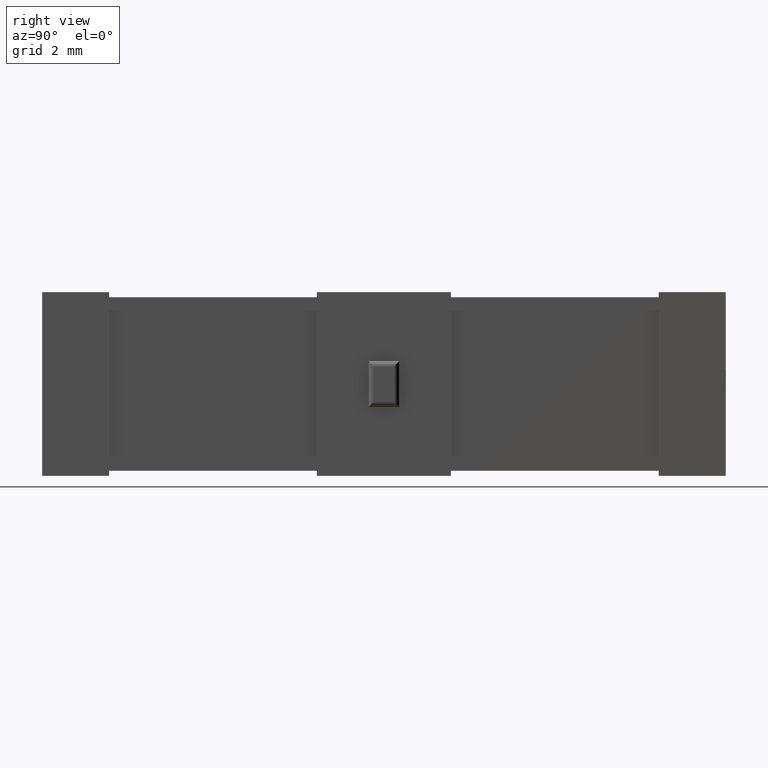
[diagram: clean part render]
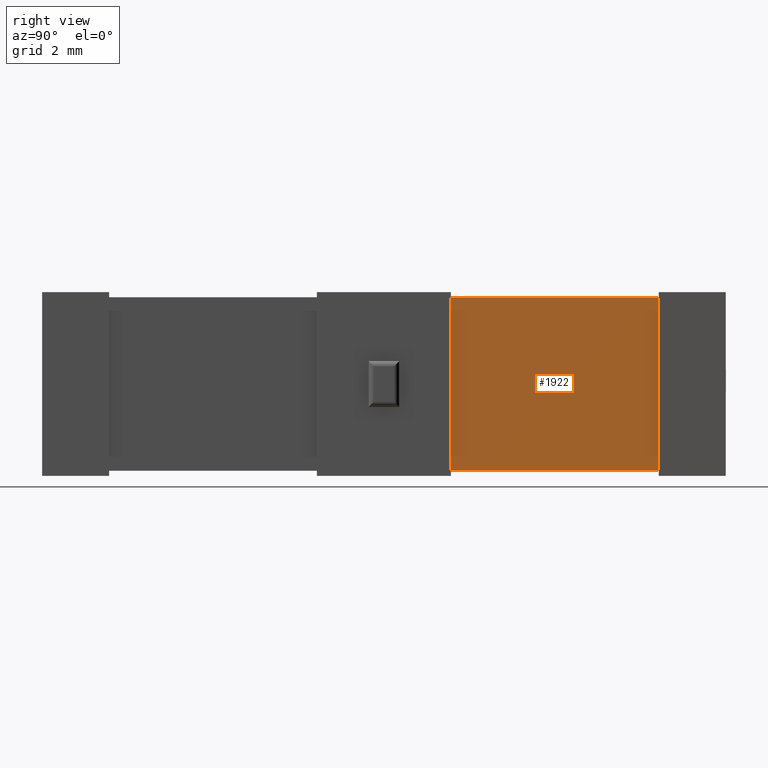
[diagram: same view with one face highlighted and labeled with its STEP entity id]
A machine part, right view. The second image highlights one B-rep face of the part: STEP entity #1922.
In plain terms, the highlighted planar face has unit normal (1, 0, 0).
Its self-contained STEP definition (entity closure, byte-faithful):
#55 = PLANE ( 'NONE',  #322 ) ;
#70 = VERTEX_POINT ( 'NONE', #228 ) ;
#209 = FACE_OUTER_BOUND ( 'NONE', #2151, .T. ) ;
#228 = CARTESIAN_POINT ( 'NONE',  ( 5.000000000000000000, 12.01980000000000000, 5.249999999999999100 ) ) ;
#306 = DIRECTION ( 'NONE',  ( 0.0000000000000000000, 0.0000000000000000000, -1.000000000000000000 ) ) ;
#322 = AXIS2_PLACEMENT_3D ( 'NONE', #2400, #1882, #840 ) ;
#394 = EDGE_CURVE ( 'NONE', #70, #2624, #2089, .T. ) ;
#611 = LINE ( 'NONE', #3025, #3116 ) ;
#643 = CARTESIAN_POINT ( 'NONE',  ( 5.000000000000000000, 12.01980000000000000, 0.1500000000000021000 ) ) ;
#840 = DIRECTION ( 'NONE',  ( 0.0000000000000000000, 0.0000000000000000000, -1.000000000000000000 ) ) ;
#850 = ORIENTED_EDGE ( 'NONE', *, *, #394, .T. ) ;
#906 = CARTESIAN_POINT ( 'NONE',  ( 5.000000000000000000, 18.13019999999999900, 5.250000000000000000 ) ) ;
#1129 = LINE ( 'NONE', #1646, #2575 ) ;
#1165 = VECTOR ( 'NONE', #1689, 1000.000000000000000 ) ;
#1372 = VERTEX_POINT ( 'NONE', #2384 ) ;
#1373 = CARTESIAN_POINT ( 'NONE',  ( 5.000000000000000000, 12.01980000000000000, 5.249999999999999100 ) ) ;
#1402 = EDGE_CURVE ( 'NONE', #2624, #1372, #1129, .T. ) ;
#1481 = DIRECTION ( 'NONE',  ( -0.0000000000000000000, -0.0000000000000000000, 1.000000000000000000 ) ) ;
#1546 = EDGE_CURVE ( 'NONE', #1372, #2396, #611, .T. ) ;
#1640 = VECTOR ( 'NONE', #306, 1000.000000000000000 ) ;
#1646 = CARTESIAN_POINT ( 'NONE',  ( 5.000000000000000000, 18.13019999999999900, 0.1500000000000028500 ) ) ;
#1681 = CARTESIAN_POINT ( 'NONE',  ( 5.000000000000000000, 18.13019999999999900, 5.250000000000000000 ) ) ;
#1686 = ORIENTED_EDGE ( 'NONE', *, *, #1546, .T. ) ;
#1689 = DIRECTION ( 'NONE',  ( 0.0000000000000000000, -1.000000000000000000, -1.419484383982069700E-016 ) ) ;
#1882 = DIRECTION ( 'NONE',  ( 1.000000000000000000, 0.0000000000000000000, 0.0000000000000000000 ) ) ;
#1922 = ADVANCED_FACE ( 'NONE', ( #209 ), #55, .T. ) ;
#1986 = LINE ( 'NONE', #1681, #1165 ) ;
#2089 = LINE ( 'NONE', #1373, #1640 ) ;
#2151 = EDGE_LOOP ( 'NONE', ( #2309, #850, #3325, #1686 ) ) ;
#2309 = ORIENTED_EDGE ( 'NONE', *, *, #3365, .T. ) ;
#2384 = CARTESIAN_POINT ( 'NONE',  ( 5.000000000000000000, 18.13019999999999900, 0.1500000000000028500 ) ) ;
#2396 = VERTEX_POINT ( 'NONE', #906 ) ;
#2400 = CARTESIAN_POINT ( 'NONE',  ( 5.000000000000000000, 0.0000000000000000000, 0.0000000000000000000 ) ) ;
#2433 = DIRECTION ( 'NONE',  ( -0.0000000000000000000, 1.000000000000000000, 1.242048835984310900E-016 ) ) ;
#2575 = VECTOR ( 'NONE', #2433, 1000.000000000000000 ) ;
#2624 = VERTEX_POINT ( 'NONE', #643 ) ;
#3025 = CARTESIAN_POINT ( 'NONE',  ( 5.000000000000000000, 18.13019999999999900, 5.250000000000000000 ) ) ;
#3116 = VECTOR ( 'NONE', #1481, 1000.000000000000000 ) ;
#3325 = ORIENTED_EDGE ( 'NONE', *, *, #1402, .T. ) ;
#3365 = EDGE_CURVE ( 'NONE', #2396, #70, #1986, .T. ) ;